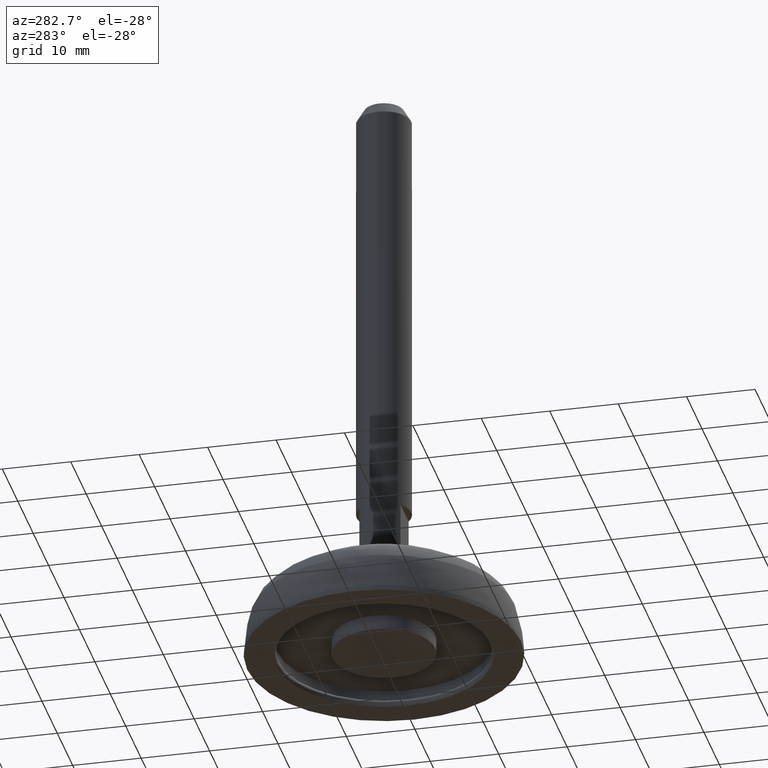
[diagram: clean part render]
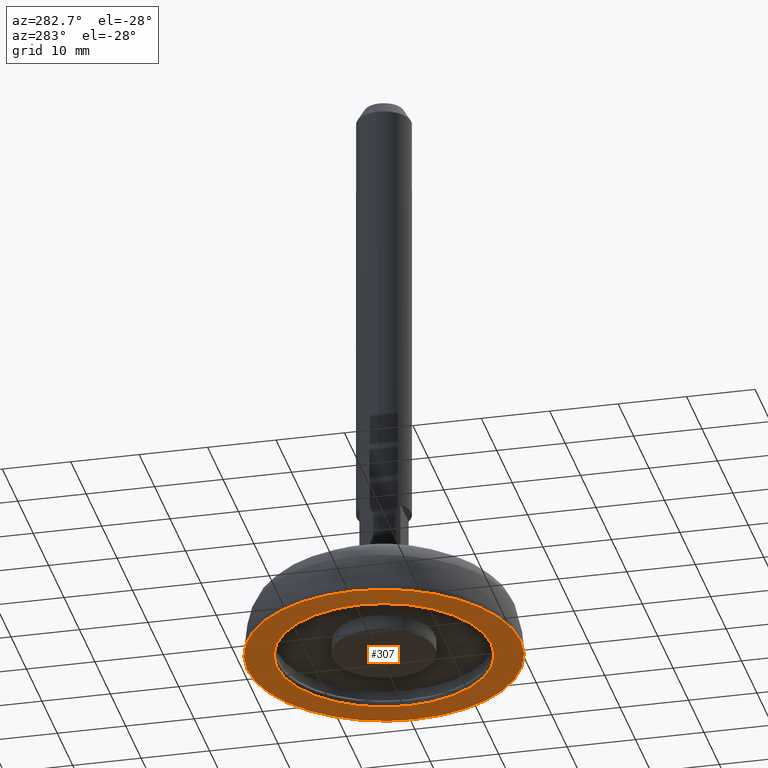
[diagram: same view with one face highlighted and labeled with its STEP entity id]
A machine part, auxiliary view. The second image highlights one B-rep face of the part: STEP entity #307.
In plain terms, the highlighted planar face has unit normal (0, 0, -1).
Its self-contained STEP definition (entity closure, byte-faithful):
#247=CARTESIAN_POINT('',(15.700079384463271,5.857621E-016,0.000030212201068));
#248=VERTEX_POINT('',#247);
#256=CARTESIAN_POINT('',(-15.700079384463271,5.857621E-016,0.000030212201068));
#257=VERTEX_POINT('',#256);
#258=CARTESIAN_POINT('',(0.0,5.857621E-016,0.000030212201068));
#259=DIRECTION('',(0.0,0.0,1.0));
#260=DIRECTION('',(1.0,0.0,0.0));
#261=AXIS2_PLACEMENT_3D('',#258,#259,#260);
#262=CIRCLE('',#261,15.700079384463271);
#263=EDGE_CURVE('',#257,#248,#262,.T.);
#265=CARTESIAN_POINT('',(0.0,5.857621E-016,0.000030212201068));
#266=DIRECTION('',(0.0,0.0,1.0));
#267=DIRECTION('',(1.0,0.0,0.0));
#268=AXIS2_PLACEMENT_3D('',#265,#266,#267);
#269=CIRCLE('',#268,15.700079384463271);
#270=EDGE_CURVE('',#248,#257,#269,.T.);
#278=CARTESIAN_POINT('',(22.001452644198977,-22.001452644198977,0.000030212201068));
#279=DIRECTION('',(0.0,0.0,-1.0));
#280=DIRECTION('',(-1.0,0.0,0.0));
#281=AXIS2_PLACEMENT_3D('',#278,#279,#280);
#282=PLANE('',#281);
#283=CARTESIAN_POINT('',(-20.001320585635433,5.857621E-016,-3.408732E-013));
#284=VERTEX_POINT('',#283);
#285=CARTESIAN_POINT('',(20.001320585635430,1.402247E-015,-3.409356E-013));
#286=VERTEX_POINT('',#285);
#287=CARTESIAN_POINT('',(0.0,5.857621E-016,-3.408732E-013));
#288=DIRECTION('',(0.0,0.0,1.0));
#289=DIRECTION('',(1.0,0.0,0.0));
#290=AXIS2_PLACEMENT_3D('',#287,#288,#289);
#291=CIRCLE('',#290,20.001320585635433);
#292=EDGE_CURVE('',#284,#286,#291,.T.);
#293=ORIENTED_EDGE('',*,*,#292,.F.);
#294=CARTESIAN_POINT('',(0.0,5.857621E-016,-3.408732E-013));
#295=DIRECTION('',(0.0,0.0,1.0));
#296=DIRECTION('',(1.0,0.0,0.0));
#297=AXIS2_PLACEMENT_3D('',#294,#295,#296);
#298=CIRCLE('',#297,20.001320585635433);
#299=EDGE_CURVE('',#286,#284,#298,.T.);
#300=ORIENTED_EDGE('',*,*,#299,.F.);
#301=EDGE_LOOP('',(#293,#300));
#302=FACE_OUTER_BOUND('',#301,.T.);
#303=ORIENTED_EDGE('',*,*,#270,.T.);
#304=ORIENTED_EDGE('',*,*,#263,.T.);
#305=EDGE_LOOP('',(#303,#304));
#306=FACE_BOUND('',#305,.T.);
#307=ADVANCED_FACE('',(#302,#306),#282,.T.);